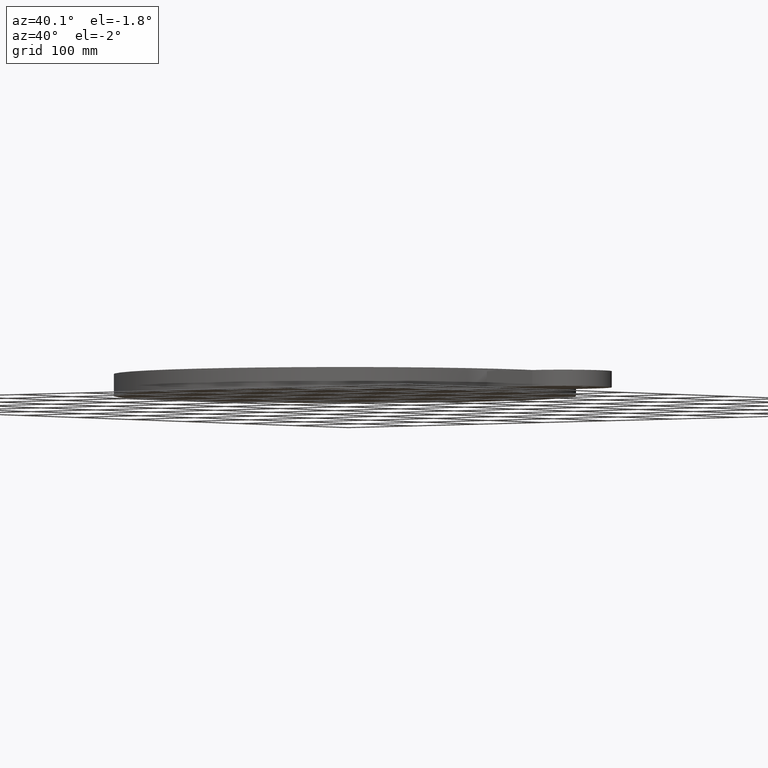
[diagram: clean part render]
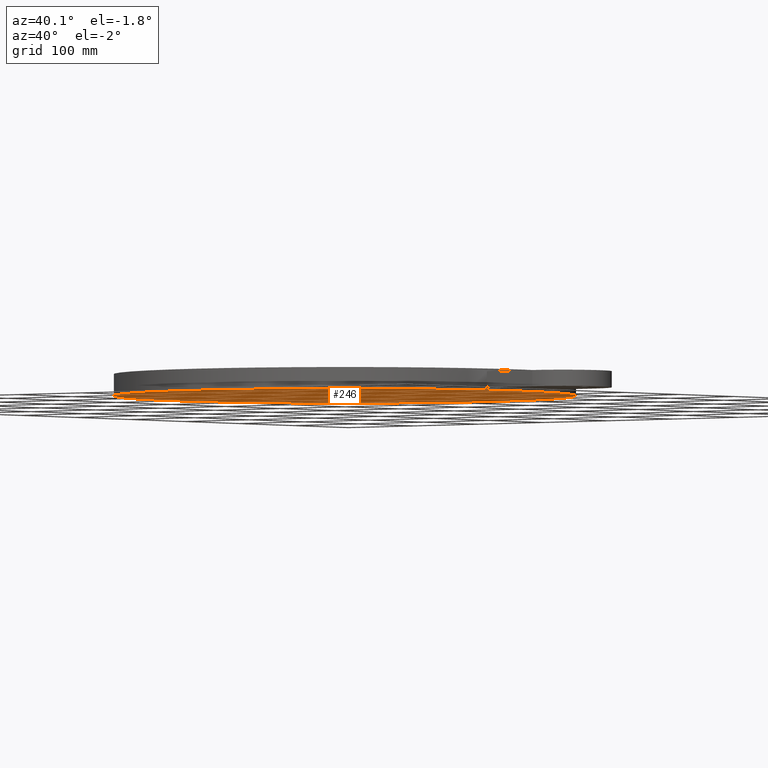
[diagram: same view with one face highlighted and labeled with its STEP entity id]
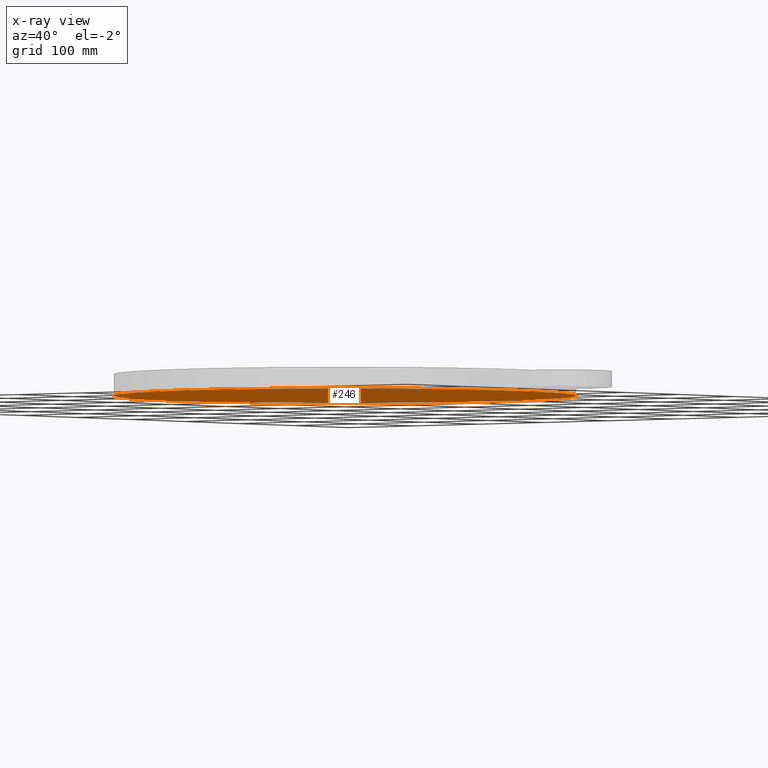
[diagram: x-ray of the same camera — body ghosted, the highlighted face saturated]
A machine part, auxiliary view. The second image highlights one B-rep face of the part: STEP entity #246.
The next image is the same camera in x-ray: the body ghosted, the highlighted face saturated — about 0% of this face is hidden behind the body in this view.
In plain terms, the highlighted planar face has unit normal (0, 0, 1).
Its self-contained STEP definition (entity closure, byte-faithful):
#226=AXIS2_PLACEMENT_3D('Plane Axis2P3D',#223,#224,#225) ;
#230=AXIS2_PLACEMENT_3D('Circle Axis2P3D',#228,#229,$) ;
#239=AXIS2_PLACEMENT_3D('Circle Axis2P3D',#237,#238,$) ;
#223=CARTESIAN_POINT('Axis2P3D Location',(0.,0.,-0.500000000002)) ;
#228=CARTESIAN_POINT('Axis2P3D Location',(0.,0.,-0.500000000002)) ;
#232=CARTESIAN_POINT('Vertex',(-10.75,1.31649530909E-015,-0.500000000002)) ;
#234=CARTESIAN_POINT('Vertex',(10.75,0.,-0.500000000002)) ;
#237=CARTESIAN_POINT('Axis2P3D Location',(0.,0.,-0.500000000002)) ;
#224=DIRECTION('Axis2P3D Direction',(0.,0.,0.0393700787402)) ;
#225=DIRECTION('Axis2P3D XDirection',(0.0393700787402,0.,0.)) ;
#229=DIRECTION('Axis2P3D Direction',(0.,0.,0.0393700787402)) ;
#238=DIRECTION('Axis2P3D Direction',(0.,0.,0.0393700787402)) ;
#243=ORIENTED_EDGE('',*,*,#236,.F.) ;
#244=ORIENTED_EDGE('',*,*,#241,.F.) ;
#246=ADVANCED_FACE('PartBody',(#245),#227,.F.) ;
#231=CIRCLE('generated circle',#230,10.75) ;
#240=CIRCLE('generated circle',#239,10.75) ;
#236=EDGE_CURVE('',#233,#235,#231,.T.) ;
#241=EDGE_CURVE('',#235,#233,#240,.T.) ;
#242=EDGE_LOOP('',(#243,#244)) ;
#245=FACE_OUTER_BOUND('',#242,.T.) ;
#227=PLANE('',#226) ;
#233=VERTEX_POINT('',#232) ;
#235=VERTEX_POINT('',#234) ;